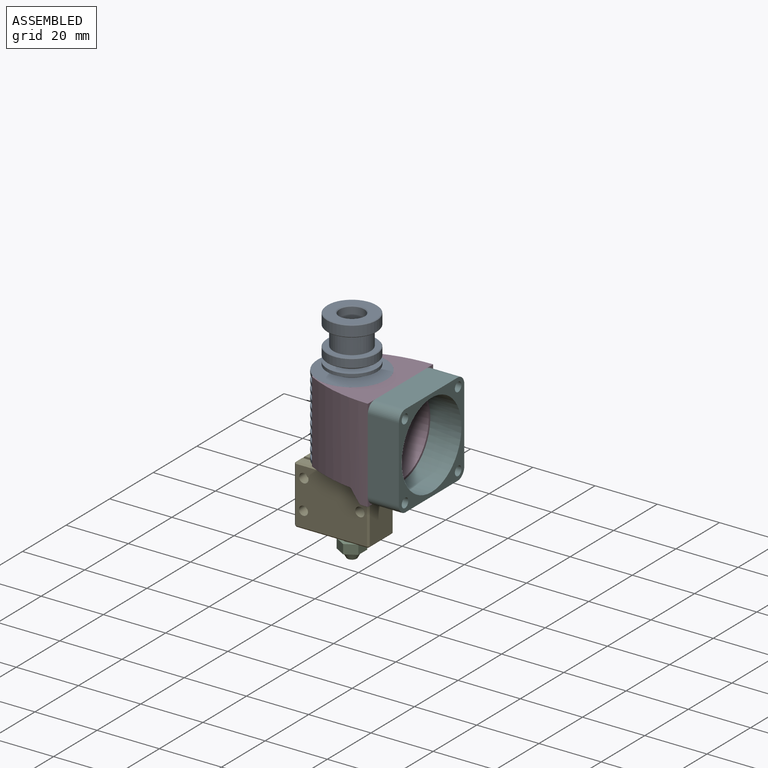
[diagram: assembled view]
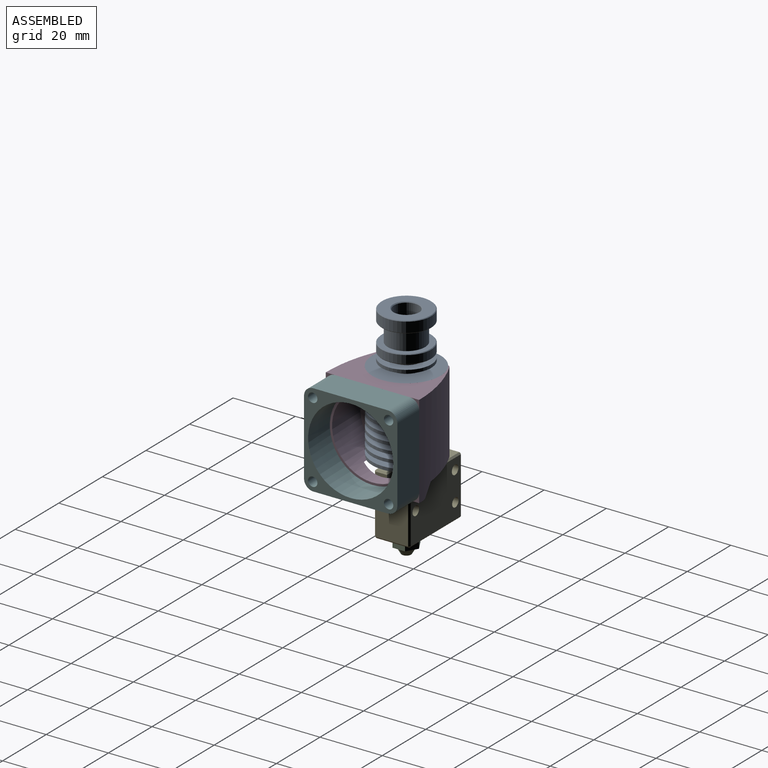
[diagram: assembled view, second angle]
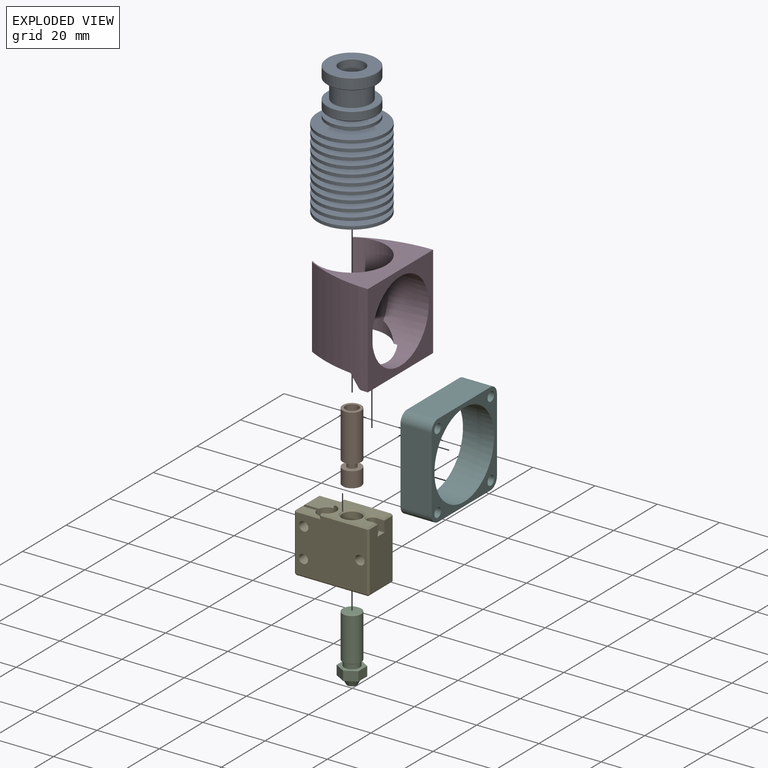
[diagram: exploded view]
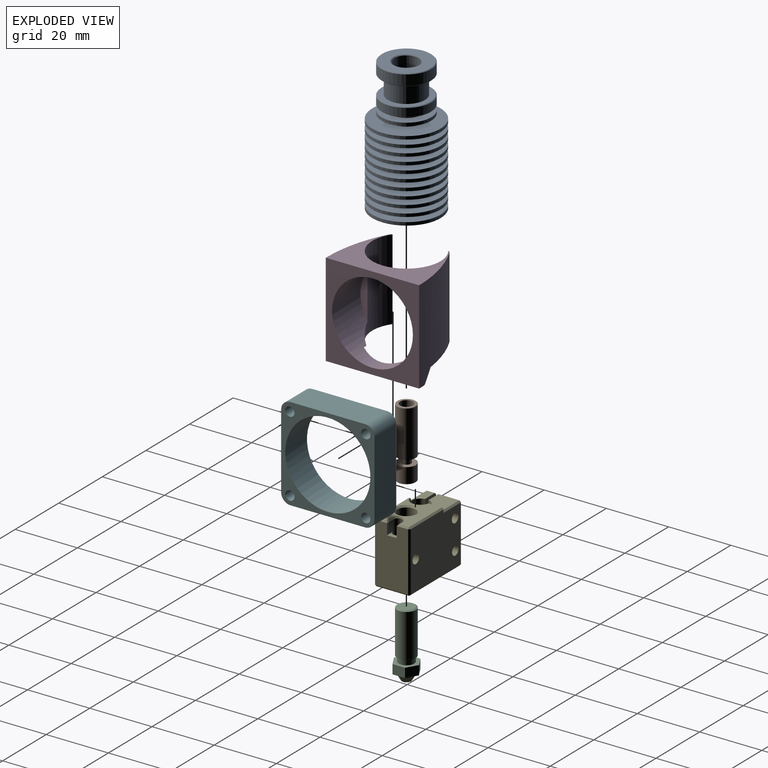
[diagram: exploded view, second angle]
ASSEMBLY  parts=6 mates=5
PART A: 65 faces, bbox 22x22x42.7 mm
  f0: cylinder r=2.1mm len=15.1mm, axis (0,0,1), area 199.2mm2, adj f61,f63
  f1: cone r=6mm half-angle=1.9deg, axis (0,0,-1), area 48.2mm2, adj f43,f46
  f2: cone r=6mm half-angle=1.9deg, axis (0,0,-1), area 56mm2, adj f4,f8
  f3: cylinder r=11mm len=22mm, axis (0,0,-1), area 69.1mm2, adj f4,f5
  f4: plane 22x22mm, normal (0,0,1), area 268.3mm2, adj f2,f3
  f5: plane 22x22mm, normal (0,0,-1), area 351.9mm2, adj f3,f62
  f6: cylinder r=11mm len=22mm, axis (0,0,-1), area 69.1mm2, adj f7,f8
  f7: plane 22x22mm, normal (0,0,1), area 271.4mm2, adj f6,f9
  f8: plane 22x22mm, normal (0,0,-1), area 270.2mm2, adj f2,f6
  f9: cone r=6mm half-angle=1.9deg, axis (0,0,-1), area 55.2mm2, adj f7,f12
  f10: cylinder r=11mm len=22mm, axis (0,0,-1), area 69.1mm2, adj f11,f12
  f11: plane 22x22mm, normal (0,0,1), area 274.4mm2, adj f10,f13
  f12: plane 22x22mm, normal (0,0,-1), area 273.2mm2, adj f9,f10
  f13: cone r=6mm half-angle=1.9deg, axis (0,0,-1), area 54.5mm2, adj f11,f16
  f14: cylinder r=11mm len=22mm, axis (0,0,-1), area 69.1mm2, adj f15,f16
  f15: plane 22x22mm, normal (0,0,1), area 277.5mm2, adj f14,f17
  f16: plane 22x22mm, normal (0,0,-1), area 276.3mm2, adj f13,f14
  f17: cone r=6mm half-angle=1.9deg, axis (0,0,-1), area 53.7mm2, adj f15,f20
  f18: cylinder r=11mm len=22mm, axis (0,0,-1), area 69.1mm2, adj f19,f20
  f19: plane 22x22mm, normal (0,0,1), area 280.4mm2, adj f18,f21
  f20: plane 22x22mm, normal (0,0,-1), area 279.3mm2, adj f17,f18
  f21: cone r=6mm half-angle=1.9deg, axis (0,0,-1), area 52.9mm2, adj f19,f24
  f22: cylinder r=11mm len=22mm, axis (0,0,-1), area 69.1mm2, adj f23,f24
  f23: plane 22x22mm, normal (0,0,1), area 283.4mm2, adj f22,f25
  f24: plane 22x22mm, normal (0,0,-1), area 282.2mm2, adj f21,f22
  f25: cone r=6mm half-angle=1.9deg, axis (0,0,-1), area 52.1mm2, adj f23,f28
  f26: cylinder r=11mm len=22mm, axis (0,0,-1), area 69.1mm2, adj f27,f28
  f27: plane 22x22mm, normal (0,0,1), area 286.2mm2, adj f26,f29
  f28: plane 22x22mm, normal (0,0,-1), area 285.1mm2, adj f25,f26
  f29: cone r=6mm half-angle=1.9deg, axis (0,0,-1), area 51.3mm2, adj f27,f32
  f30: cylinder r=11mm len=22mm, axis (0,0,-1), area 69.1mm2, adj f31,f32
  f31: plane 22x22mm, normal (0,0,1), area 289.1mm2, adj f30,f33
  f32: plane 22x22mm, normal (0,0,-1), area 288mm2, adj f29,f30
  f33: cone r=6mm half-angle=1.9deg, axis (0,0,-1), area 50.5mm2, adj f31,f36
  f34: cylinder r=11mm len=22mm, axis (0,0,-1), area 69.1mm2, adj f35,f36
  f35: plane 22x22mm, normal (0,0,1), area 291.9mm2, adj f34,f37
  f36: plane 22x22mm, normal (0,0,-1), area 290.8mm2, adj f33,f34
  f37: cone r=6mm half-angle=1.9deg, axis (0,0,-1), area 49.7mm2, adj f35,f40
  f38: cylinder r=11mm len=22mm, axis (0,0,-1), area 69.1mm2, adj f39,f40
  f39: plane 22x22mm, normal (0,0,1), area 294.6mm2, adj f38,f41
  f40: plane 22x22mm, normal (0,0,-1), area 293.5mm2, adj f37,f38
  f41: cone r=6mm half-angle=1.9deg, axis (0,0,-1), area 49mm2, adj f39,f44
  f42: cylinder r=11mm len=22mm, axis (0,0,-1), area 69.1mm2, adj f43,f44
  f43: plane 22x22mm, normal (0,0,1), area 297.3mm2, adj f1,f42
  f44: plane 22x22mm, normal (0,0,-1), area 296.3mm2, adj f41,f42
  f45: cylinder r=8mm len=16mm, axis (0,0,1), area 50.3mm2, adj f46,f47
  f46: plane 16x16mm, normal (0,0,-1), area 119.9mm2, adj f1,f45
  f47: plane 16x16mm, normal (0,0,1), area 120.9mm2, adj f45,f48
  f48: cone r=6mm half-angle=1.9deg, axis (0,0,-1), area 47.4mm2, adj f47,f51
  f49: cylinder r=8mm len=16mm, axis (0,0,-1), area 130.7mm2, adj f56,f57
  f50: plane 15.6x15.6mm, normal (0,0,1), area 78mm2, adj f52,f57
  f51: plane 15.6x15.6mm, normal (0,0,-1), area 112.6mm2, adj f48,f56
  f52: cylinder r=6mm len=12mm, axis (0,0,-1), area 226.2mm2, adj f50,f55
  f53: cylinder r=8mm len=16mm, axis (0,0,-1), area 165.9mm2, adj f58,f59
  f54: plane 15.6x15.6mm, normal (0,0,1), area 134.4mm2, adj f59,f64
  f55: plane 15.6x15.6mm, normal (0,0,-1), area 78mm2, adj f52,f58
  f56: cone r=8mm half-angle=45deg, axis (0,0,1), area 14mm2, adj f49,f51
  f57: cone r=7.8mm half-angle=45deg, axis (0,0,-1), area 14mm2, adj f49,f50
  f58: cone r=8mm half-angle=45deg, axis (0,0,1), area 14mm2, adj f53,f55
  f59: cone r=7.8mm half-angle=45deg, axis (0,0,-1), area 14mm2, adj f53,f54
  f60: cylinder r=4mm len=9.35mm, axis (0,0,1), area 235mm2, adj f61,f64
  f61: cone r=2.1mm half-angle=45deg, axis (0,0,1), area 51.5mm2, adj f0,f60
  f62: cylinder r=3mm len=15.2mm, axis (0,0,-1), area 286.5mm2, adj f5,f63
  f63: cone r=3.1mm half-angle=45deg, axis (0,0,-1), area 20.4mm2, adj f0,f62
  f64: cone r=4mm half-angle=45deg, axis (0,0,1), area 9.2mm2, adj f54,f60
PART B: 12 faces, bbox 6x6x22.1 mm
  f0: cylinder r=3mm len=6mm, axis (0,0,-1), area 92.4mm2, adj f1,f7
  f1: plane 6x6mm, normal (0,0,1), area 21.4mm2, adj f0,f3
  f2: plane 5.8x5.8mm, normal (0,0,-1), area 23.3mm2, adj f7,f10
  f3: cylinder r=1.47mm len=2.95mm, axis (0,0,-1), area 19.5mm2, adj f1,f6
  f4: cylinder r=3mm len=14.9mm, axis (0,0,-1), area 280.9mm2, adj f6,f8
  f5: plane 5.8x5.8mm, normal (0,0,1), area 12.6mm2, adj f8,f9
  f6: plane 6x6mm, normal (0,0,-1), area 21.4mm2, adj f3,f4
  f7: cone r=3mm half-angle=45deg, axis (0,0,1), area 2.6mm2, adj f0,f2
  f8: cone r=2.9mm half-angle=45deg, axis (0,0,-1), area 2.6mm2, adj f4,f5
  f9: cylinder r=2.1mm len=5mm, axis (0,0,1), area 66mm2, adj f5,f11
  f10: cylinder r=1mm len=16mm, axis (0,0,1), area 100.5mm2, adj f2,f11
  f11: cone r=1mm half-angle=45deg, axis (0,0,1), area 15.2mm2, adj f9,f10
PART C: 17 faces, bbox 7x8.1x21.4 mm
  f0: cylinder r=0.6mm len=2.4mm, axis (0,0,-1), area 9mm2, adj f1,f11
  f1: plane 3x3mm, normal (0,0,-1), area 5.9mm2, adj f0,f2
  f2: cone r=1.5mm half-angle=30deg, axis (0,0,1), area 38.2mm2, adj f1,f3
  f3: plane 8.08x7.01mm, normal (0,0,-1), area 16.3mm2, adj f2,f5,f6,f7,f8,f9,f10
  f4: plane 8.08x7.01mm, normal (0,0,1), area 22.8mm2, adj f5,f6,f7,f8,f9,f10,f12
  f5: plane 3.49x3mm, normal (0.5,0.86,0), area 12.1mm2, adj f3,f4,f6,f10
  f6: plane 4.04x3mm, normal (1,0,0), area 12.1mm2, adj f3,f4,f5,f7
  f7: plane 3.51x3mm, normal (0.5,-0.87,0), area 12.1mm2, adj f3,f4,f6,f8
  f8: plane 3.49x3mm, normal (-0.5,-0.86,0), area 12.1mm2, adj f3,f4,f7,f9
  f9: plane 4.04x3mm, normal (-1,0,0), area 12.1mm2, adj f3,f4,f8,f10
  f10: plane 3.51x3mm, normal (-0.5,0.87,0), area 12.1mm2, adj f3,f4,f5,f9
  f11: plane 1.2x1.2mm, normal (0,0,-1), area 1.1mm2, adj f0
  f12: cylinder r=2.5mm len=5mm, axis (0,0,-1), area 23.6mm2, adj f4,f15
  f13: cylinder r=3mm len=13.92mm, axis (0,0,-1), area 262.4mm2, adj f15,f16
  f14: plane 5x5mm, normal (0,0,1), area 19.6mm2, adj f16
  f15: cone r=3mm half-angle=60deg, axis (0,0,1), area 10mm2, adj f12,f13
  f16: cone r=2.5mm half-angle=60deg, axis (0,0,-1), area 10mm2, adj f13,f14
PART D: 15 faces, bbox 22x30x30 mm
  f0: plane 16.19x7.8mm, normal (0,0,-1), area 45.7mm2, adj f1,f6,f8,f10,f13
  f1: plane 29.82x3.58mm, normal (-0.78,0,-0.63), area 112.5mm2, adj f0,f4,f7,f8,f11,f13
  f2: plane 30x2.16mm, normal (0,0,-1), area 64.6mm2, adj f5,f7,f8,f11
  f3: plane 30x22mm, normal (0,0,1), area 258.1mm2, adj f5,f6,f7,f8,f9,f10
  f4: plane 16.19x7.8mm, normal (0,0,-1), area 45.7mm2, adj f1,f6,f7,f9,f13
  f5: plane 30x30mm, normal (1,0,0), area 369.1mm2, adj f2,f3,f7,f8,f13
  f6: cylinder r=11mm len=26.06mm, axis (0,0,-1), area 645mm2, adj f0,f3,f4,f9,f10,f12,f13,f14
  f7: cylinder r=46.43mm len=30mm, axis (0,0,1), area 598.1mm2, adj f1,f2,f3,f4,f5,f9,f11
  f8: cylinder r=46.43mm len=30mm, axis (0,0,1), area 598.1mm2, adj f0,f1,f2,f3,f5,f10,f11
  f9: cylinder r=1mm len=26.06mm, axis (0,0,-1), area 26.1mm2, adj f3,f4,f6,f7
  f10: cylinder r=1mm len=26.06mm, axis (0,0,-1), area 26.1mm2, adj f0,f3,f6,f8
  f11: cylinder r=1mm len=29.9mm, axis (0,1,0), area 26.7mm2, adj f1,f2,f7,f8
  f12: plane 14.8x2.31mm, normal (1,0,0), area 23.2mm2, adj f6,f13
  f13: cylinder r=13mm len=26mm, axis (1,0,0), area 757.4mm2, adj f0,f1,f4,f5,f6,f12,f14
  f14: plane 14.8x2.31mm, normal (1,0,0), area 23.2mm2, adj f6,f13
PART E: 60 faces, bbox 24x11.5x20 mm
  f0: plane 18x6.74mm, normal (-1,0,0), area 121.4mm2, adj f4,f5,f33,f59
  f1: cylinder r=1.5mm len=7.24mm, axis (0,-1,0), area 68.3mm2, adj f6,f59
  f2: cylinder r=1.46mm len=7.24mm, axis (0,-1,0), area 66.2mm2, adj f6,f59
  f3: plane 7.5x6.74mm, normal (0,0,1), area 45.1mm2, adj f4,f14,f22,f37,f59
  f4: plane 6.74x0.5mm, normal (-0.71,0,0.71), area 4.8mm2, adj f0,f3,f32,f59
  f5: plane 6.74x0.5mm, normal (-0.71,0,-0.71), area 4.8mm2, adj f0,f11,f38,f59
  f6: plane 23x19mm, normal (0,1,0), area 408.2mm2, adj f1,f2,f16,f33,f37,f43,f44,f50
  f7: plane 18x2.66mm, normal (-1,0,0), area 47.8mm2, adj f26,f28,f34,f58
  f8: plane 23x19mm, normal (0,-1,0), area 408.2mm2, adj f15,f17,f18,f26,f27,f30,f35,f40
  f9: plane 15x10.5mm, normal (0,0,1), area 91.8mm2, adj f14,f31,f41,f42,f49,f50,f52,f54
  f10: plane 19x10.5mm, normal (1,0,0), area 188.6mm2, adj f19,f20,f21,f40,f45,f49,f51,f55
  f11: plane 23x10.5mm, normal (0,0,-1), area 172.4mm2, adj f5,f12,f13,f14,f34,f35,f44,f45
  f12: cylinder r=3mm len=19.5mm, axis (0,0,1), area 367.6mm2, adj f11,f57
  f13: cylinder r=1.55mm len=19.5mm, axis (0,0,1), area 155.7mm2, adj f11,f15,f16,f19,f20,f21,f54
  f14: cylinder r=3mm len=20mm, axis (0,0,1), area 346.3mm2, adj f3,f9,f11,f22,f23,f24,f31,f42
  f15: cylinder r=1.5mm len=5.36mm, axis (0,-1,0), area 44.2mm2, adj f8,f13
  f16: cylinder r=1.5mm len=5.36mm, axis (0,-1,0), area 44.2mm2, adj f6,f13
  f17: cylinder r=1.5mm len=3.16mm, axis (0,-1,0), area 29.8mm2, adj f8,f58
  f18: cylinder r=1.46mm len=3.16mm, axis (0,-1,0), area 28.9mm2, adj f8,f58
  f19: plane 3.5x2.8mm, normal (0,1,0), area 9.8mm2, adj f10,f13,f21,f52
  f20: plane 3.5x2.8mm, normal (0,-1,0), area 9.8mm2, adj f10,f13,f21,f56
  f21: plane 3.1x2.8mm, normal (0,0,1), area 4.9mm2, adj f10,f13,f19,f20
  f22: plane 4.28x0.5mm, normal (-1,0,0), area 2.1mm2, adj f3,f14,f42,f43
  f23: plane 0.5x0.22mm, normal (-1,0,0), area 0.1mm2, adj f14,f24,f30,f31
  f24: plane 7.5x2.66mm, normal (0,0,1), area 14.5mm2, adj f14,f23,f27,f28,f58
  f25: plane 0.5x0.5mm, normal (-0.58,-0.58,0.58), area 0.2mm2, adj f26,f27,f28
  f26: plane 18x0.5mm, normal (-0.71,-0.71,0), area 12.7mm2, adj f7,f8,f25,f29
  f27: plane 8x0.5mm, normal (0,-0.71,0.71), area 5.5mm2, adj f8,f24,f25,f30
  f28: plane 2.66x0.5mm, normal (-0.71,0,0.71), area 1.9mm2, adj f7,f24,f25,f58
  f29: plane 0.5x0.5mm, normal (-0.58,-0.58,-0.58), area 0.2mm2, adj f26,f34,f35
  f30: plane 1x0.5mm, normal (-0.71,-0.71,0), area 0.5mm2, adj f8,f23,f27,f36
  f31: plane 0.5x0.5mm, normal (-0.71,0,0.71), area 0.2mm2, adj f9,f14,f23,f36
  f32: plane 0.5x0.5mm, normal (-0.58,0.58,0.58), area 0.2mm2, adj f4,f33,f37
  f33: plane 18x0.5mm, normal (-0.71,0.71,0), area 12.7mm2, adj f0,f6,f32,f38
  f34: plane 2.66x0.5mm, normal (-0.71,0,-0.71), area 1.9mm2, adj f7,f11,f29,f58
  f35: plane 23x0.5mm, normal (0,-0.71,-0.71), area 16.3mm2, adj f8,f11,f29,f39
  f36: plane 0.5x0.5mm, normal (-0.58,-0.58,0.58), area 0.2mm2, adj f30,f31,f41
  f37: plane 8x0.5mm, normal (0,0.71,0.71), area 5.5mm2, adj f3,f6,f32,f43
  f38: plane 0.5x0.5mm, normal (-0.58,0.58,-0.58), area 0.2mm2, adj f5,f33,f44
  f39: plane 0.5x0.5mm, normal (0.58,-0.58,-0.58), area 0.2mm2, adj f35,f40,f45
  f40: plane 19x0.5mm, normal (0.71,-0.71,0), area 13.4mm2, adj f8,f10,f39,f46
  f41: plane 15x0.5mm, normal (0,-0.71,0.71), area 10.6mm2, adj f8,f9,f36,f46
  f42: plane 4.32x0.5mm, normal (-0.71,0,0.71), area 3mm2, adj f9,f14,f22,f47
  f43: plane 1x0.5mm, normal (-0.71,0.71,0), area 0.5mm2, adj f6,f22,f37,f47
  f44: plane 23x0.5mm, normal (0,0.71,-0.71), area 16.3mm2, adj f6,f11,f38,f48
  f45: plane 10.5x0.5mm, normal (0.71,0,-0.71), area 7.4mm2, adj f10,f11,f39,f48
  f46: plane 0.5x0.5mm, normal (0.58,-0.58,0.58), area 0.2mm2, adj f40,f41,f49
  f47: plane 0.5x0.5mm, normal (-0.58,0.58,0.58), area 0.2mm2, adj f42,f43,f50
  f48: plane 0.5x0.5mm, normal (0.58,0.58,-0.58), area 0.2mm2, adj f44,f45,f51
  f49: plane 3.7x0.5mm, normal (0.71,0,0.71), area 2.4mm2, adj f9,f10,f46,f52
  f50: plane 15x0.5mm, normal (0,0.71,0.71), area 10.6mm2, adj f6,f9,f47,f53
  f51: plane 19x0.5mm, normal (0.71,0.71,0), area 13.4mm2, adj f6,f10,f48,f53
  f52: plane 2.8x0.5mm, normal (0,0.71,0.71), area 1.8mm2, adj f9,f19,f49,f54
  f53: plane 0.5x0.5mm, normal (0.58,0.58,0.58), area 0.2mm2, adj f50,f51,f55
  f54: cone r=1.55mm half-angle=45deg, axis (0,0,1), area 4mm2, adj f9,f13,f52,f56
  f55: plane 3.7x0.5mm, normal (0.71,0,0.71), area 2.4mm2, adj f9,f10,f53,f56
  f56: plane 2.8x0.5mm, normal (0,-0.71,0.71), area 1.8mm2, adj f9,f20,f54,f55
  f57: cone r=3mm half-angle=45deg, axis (0,0,1), area 14.4mm2, adj f9,f12
  f58: plane 19x5.05mm, normal (0,1,0), area 82.1mm2, adj f7,f11,f14,f17,f18,f24,f28,f34
  f59: plane 19x5.05mm, normal (0,-1,0), area 81.9mm2, adj f0,f1,f2,f3,f4,f5,f11,f14
PART F: 15 faces, bbox 10x30x30 mm
  f0: plane 24x10mm, normal (0,1,0), area 240mm2, adj f4,f5,f11,f14
  f1: plane 24x10mm, normal (0,0,1), area 240mm2, adj f4,f5,f11,f12
  f2: plane 24x10mm, normal (0,-1,0), area 240mm2, adj f4,f5,f12,f13
  f3: plane 24x10mm, normal (0,0,-1), area 240mm2, adj f4,f5,f13,f14
  f4: plane 30x30mm, normal (1,0,0), area 274.4mm2, adj f0,f1,f2,f3,f6,f7,f8,f9
  f5: plane 30x30mm, normal (-1,0,0), area 274.4mm2, adj f0,f1,f2,f3,f6,f7,f8,f9
  f6: cylinder r=1.5mm len=10mm, axis (1,0,0), area 94.2mm2, adj f4,f5
  f7: cylinder r=13.7mm len=27.4mm, axis (1,0,0), area 860.8mm2, adj f4,f5
  f8: cylinder r=1.5mm len=10mm, axis (1,0,0), area 94.2mm2, adj f4,f5
  f9: cylinder r=1.5mm len=10mm, axis (1,0,0), area 94.2mm2, adj f4,f5
  f10: cylinder r=1.5mm len=10mm, axis (1,0,0), area 94.2mm2, adj f4,f5
  f11: cylinder r=3mm len=10mm, axis (-1,0,0), area 47.1mm2, adj f0,f1,f4,f5
  f12: cylinder r=3mm len=10mm, axis (1,0,0), area 47.1mm2, adj f1,f2,f4,f5
  f13: cylinder r=3mm len=10mm, axis (-1,0,0), area 47.1mm2, adj f2,f3,f4,f5
  f14: cylinder r=3mm len=10mm, axis (1,0,0), area 47.1mm2, adj f0,f3,f4,f5
PLACE A t=(0.04,-0.19,-7.87)mm
PLACE B t=(0.04,-0.19,-14.97)mm
PLACE C t=(0.64,-0.19,-36.37)mm
PLACE D t=(0.04,-0.19,-7.93)mm
PLACE E t=(-15.46,-4.69,-29.97)mm
PLACE F t=(0.04,-0.19,-7.93)mm
MATE fastened F.f7 <-> D.f13  axis (1,0,0) through (15.64,-0.19,3.13)mm
MATE fastened B.f0 <-> A.f0  axis (0,0,-1) through (0.04,-0.19,-7.87)mm
MATE fastened D.f6 <-> A.f0  axis (0,0,-1) through (0.04,-0.19,18.13)mm
MATE fastened B.f0 <-> E.f12  axis (0,0,-1) through (0.04,-0.19,-9.97)mm
MATE fastened C.f0 <-> B.f0  axis (0,0,1) through (0.04,-0.19,-14.97)mm
